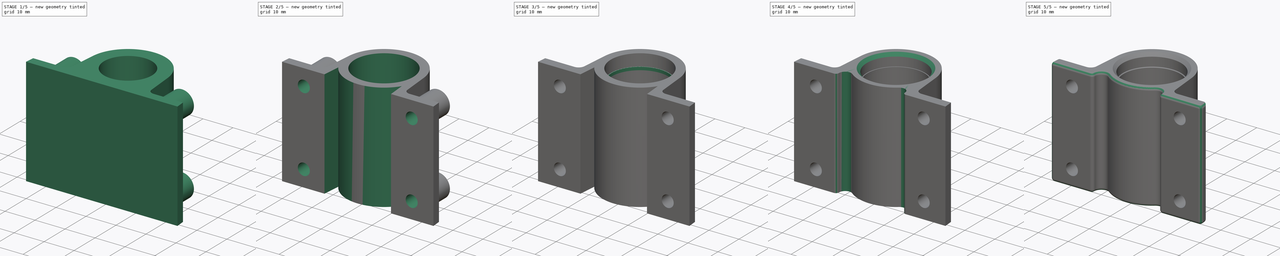
[diagram: build sequence overview — one tinted view per stage of 5, left to right]
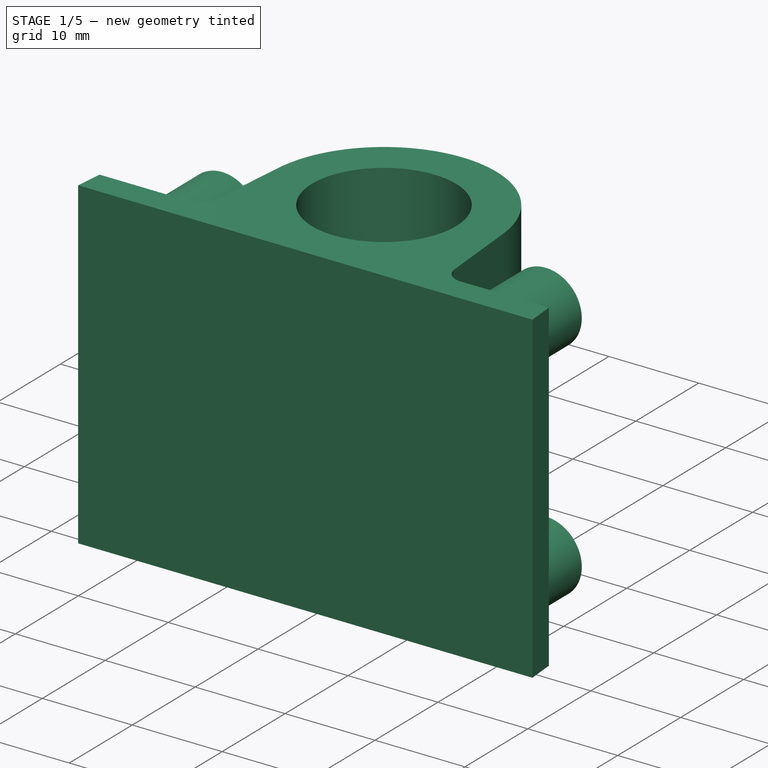
[diagram: stage 1 of 5 — iso view after this stage's code; geometry added in this stage tinted green]
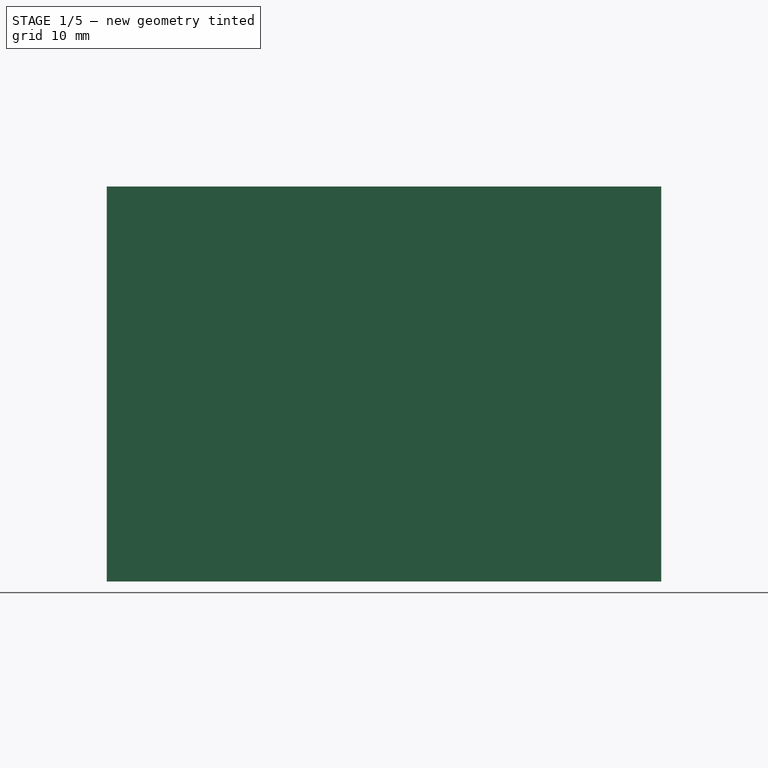
[diagram: stage 1 of 5 — front view after this stage's code; geometry added in this stage tinted green]
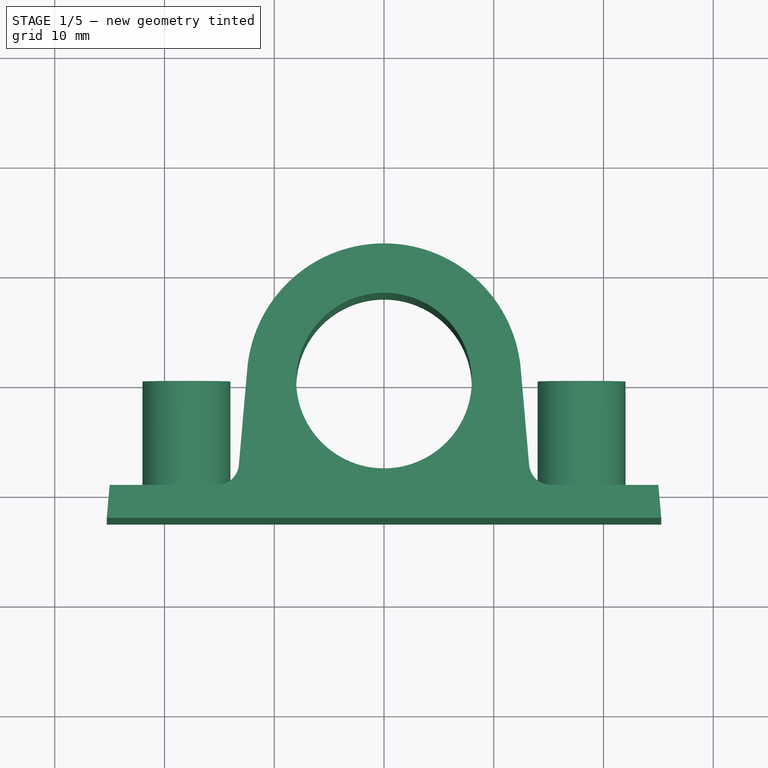
[diagram: stage 1 of 5 — top view after this stage's code; geometry added in this stage tinted green]
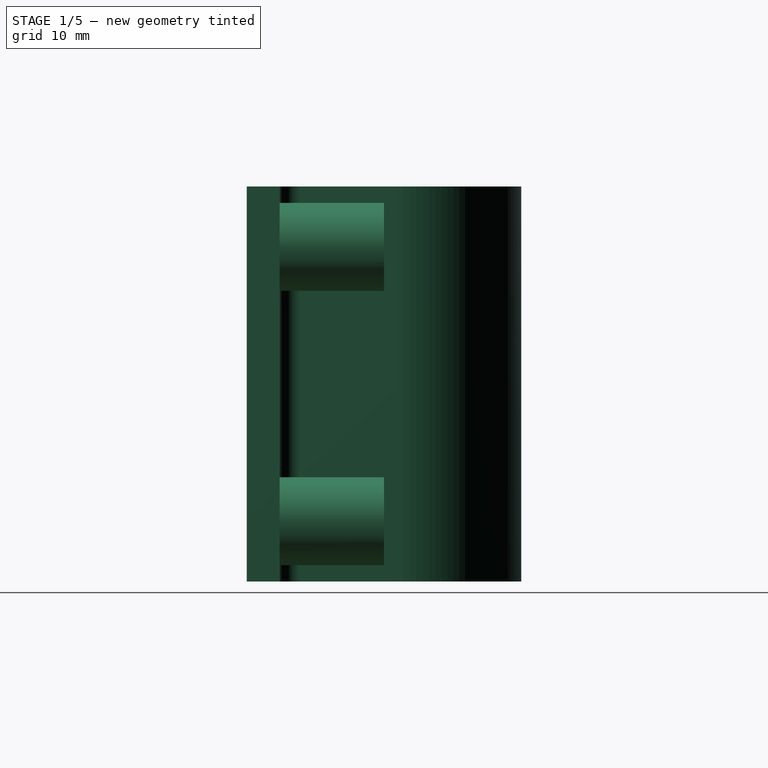
[diagram: stage 1 of 5 — right view after this stage's code; geometry added in this stage tinted green]
FCSTD DOCUMENT  (FreeCAD 0.16R5861 (Git))
Label: bearing_holder_printing_v1.0
License: All rights reserved
LicenseURL: http://en.wikipedia.org/wiki/All_rights_reserved
objects: Sketcher::SketchObject×8, PartDesign::Pocket×5, PartDesign::Fillet×4, PartDesign::Pad×3, PartDesign::Chamfer×2, Part::MultiFuse×1
note: 31 computed .brp shape members not serialized (recipe doc carries the construction recipe); baked Part::Feature solids carry a one-line shape summary decoded from their .brp

FEATURE [Sketcher::SketchObject] Sketch
  sketch-geometry (12):
    g0: Circle [constr] CenterX=0 CenterY=0 CenterZ=0 NormalX=0 NormalY=0 NormalZ=1 Radius=9.505
    g1: ArcOfCircle CenterX=0 CenterY=0 CenterZ=0 NormalX=0 NormalY=0 NormalZ=1 Radius=12.505 StartAngle=0.0872696 EndAngle=3.05432
    g2: LineSegment StartX=-25.2625 StartY=-12.505 StartZ=0 EndX=25.2625 EndY=-12.505 EndZ=0
    g3: LineSegment StartX=12.4574 StartY=1.08992 StartZ=0 EndX=13.2246 EndY=-7.67931 EndZ=0
    g4: LineSegment StartX=-12.4574 StartY=1.08992 StartZ=0 EndX=-13.2246 EndY=-7.67931 EndZ=0
    g5: LineSegment StartX=-25 StartY=-9.505 StartZ=0 EndX=-15.217 EndY=-9.505 EndZ=0
    g6: LineSegment StartX=25 StartY=-9.505 StartZ=0 EndX=25.2625 EndY=-12.505 EndZ=0
    g7: LineSegment StartX=-25 StartY=-9.505 StartZ=0 EndX=-25.2625 EndY=-12.505 EndZ=0
    g8: LineSegment StartX=15.217 StartY=-9.505 StartZ=0 EndX=25 EndY=-9.505 EndZ=0
    g9: Circle CenterX=0 CenterY=0 CenterZ=0 NormalX=0 NormalY=0 NormalZ=1 Radius=8
    g10: ArcOfCircle CenterX=15.217 CenterY=-7.505 CenterZ=0 NormalX=0 NormalY=0 NormalZ=1 Radius=2 StartAngle=3.22886 EndAngle=4.71239
    g11: ArcOfCircle CenterX=-15.217 CenterY=-7.505 CenterZ=0 NormalX=0 NormalY=0 NormalZ=1 Radius=2 StartAngle=4.71239 EndAngle=6.19592
  constraints (31):
    c: Coincident(g0,g-1)
    c: Radius(g0) = 9.505
    c: Coincident(g1,g-1)
    c: Radius(g1) = 12.505
    c: Horizontal(g2)
    c: Tangent(g3,g1)
    c: Tangent(g4,g1)
    c: Angle(g3,g2) = 1.48353
    c: Angle(g2,g4) = 1.48353
    c: Coincident(g1,g4)
    c: Horizontal(g5)
    c: Tangent(g5,g0)
    c: DistanceX(g-1,g8) = 25
    c: Coincident(g6,g8)
    c: Coincident(g7,g5)
    c: Tangent(g5,g8)
    c: Coincident(g3,g1)
    c: DistanceX(g6,g5) = -50
    c: Coincident(g7,g2)
    c: Angle(g8,g6) = 1.65806
    c: Angle(g7,g5) = 1.65806
    c: DistanceY(g5,g2) = -3
    c: Coincident(g6,g2)
    c: Coincident(g9,g-1)
    c: Radius(g9) = 8
    c: Tangent(g3,g10) = -1.5708
    c: Tangent(g8,g10) = -1.5708
    c: Tangent(g4,g11) = 1.5708
    c: Tangent(g5,g11) = -1.5708
    c: Radius(g10) = 2
    c: Equal(g10,g11)
FEATURE [Sketcher::SketchObject] Sketch005
  sketch-geometry (8):
    g0: LineSegment [constr] StartX=-18 StartY=12.5 StartZ=0 EndX=18 EndY=12.5 EndZ=0
    g1: LineSegment [constr] StartX=18 StartY=12.5 StartZ=0 EndX=18 EndY=-12.5 EndZ=0
    g2: LineSegment [constr] StartX=18 StartY=-12.5 StartZ=0 EndX=-18 EndY=-12.5 EndZ=0
    g3: LineSegment [constr] StartX=-18 StartY=-12.5 StartZ=0 EndX=-18 EndY=12.5 EndZ=0
    g4: Circle CenterX=-18 CenterY=12.5 CenterZ=0 NormalX=0 NormalY=0 NormalZ=1 Radius=4
    g5: Circle CenterX=18 CenterY=12.5 CenterZ=0 NormalX=0 NormalY=0 NormalZ=1 Radius=4
    g6: Circle CenterX=18 CenterY=-12.5 CenterZ=0 NormalX=0 NormalY=0 NormalZ=1 Radius=4
    g7: Circle CenterX=-18 CenterY=-12.5 CenterZ=0 NormalX=0 NormalY=0 NormalZ=1 Radius=4
  constraints (20):
    c: Coincident(g0,g1)
    c: Coincident(g1,g2)
    c: Coincident(g2,g3)
    c: Coincident(g3,g0)
    c: Horizontal(g0)
    c: Horizontal(g2)
    c: Vertical(g1)
    c: Vertical(g3)
    c: DistanceY(g-1,g0) = 12.5
    c: DistanceY(g1) = -25
    c: DistanceX(g2) = -36
    c: DistanceX(g-1,g1) = 18
    c: Radius(g4) = 4
    c: Equal(g7,g4)
    c: Equal(g4,g5)
    c: Equal(g5,g6)
    c: Coincident(g0,g4)
    c: Coincident(g0,g5)
    c: Coincident(g1,g6)
    c: Coincident(g2,g7)
FEATURE [PartDesign::Pad] Pad
  Length = 10
  Length2 = 100
  Sketch = -> Sketch005
  Type = 0
FEATURE [PartDesign::Pad] Pad001
  Length = 36
  Length2 = 100
  Midplane = true
  Sketch = -> Sketch
  Type = 0
FEATURE [Part::MultiFuse] Fusion
  Shapes = -> [Pad,Pad001]
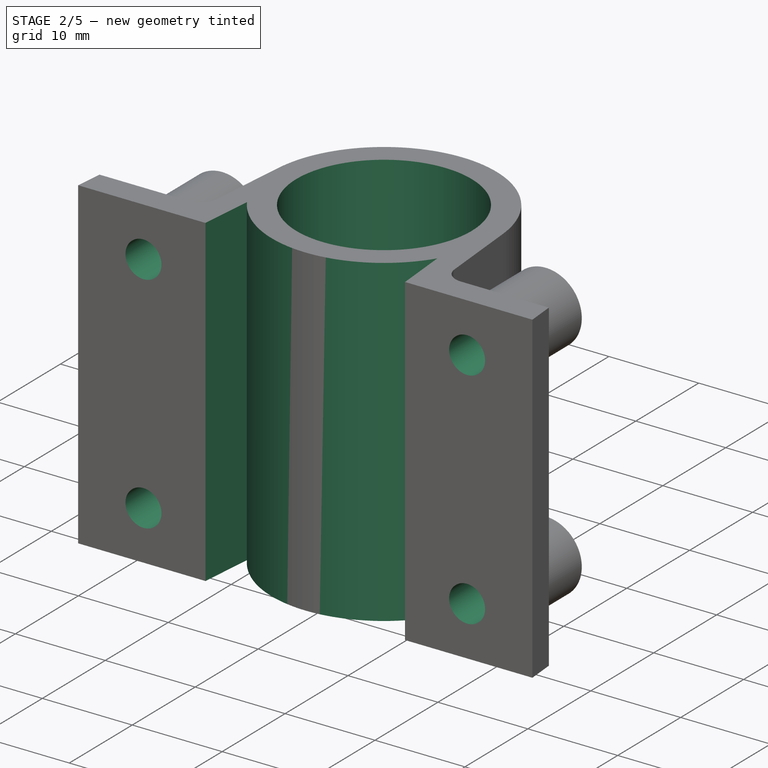
[diagram: stage 2 of 5 — iso view after this stage's code; geometry added in this stage tinted green]
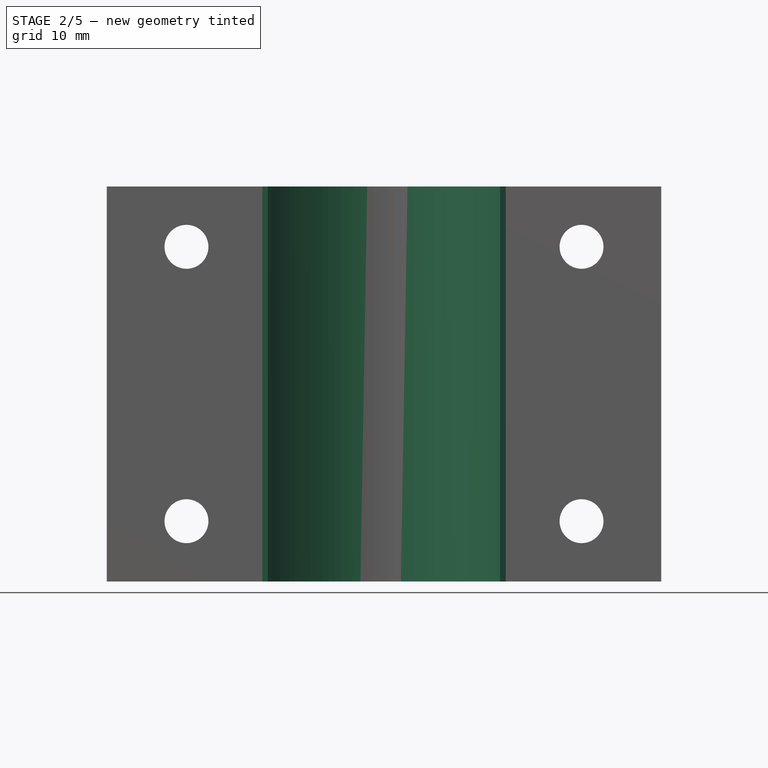
[diagram: stage 2 of 5 — front view after this stage's code; geometry added in this stage tinted green]
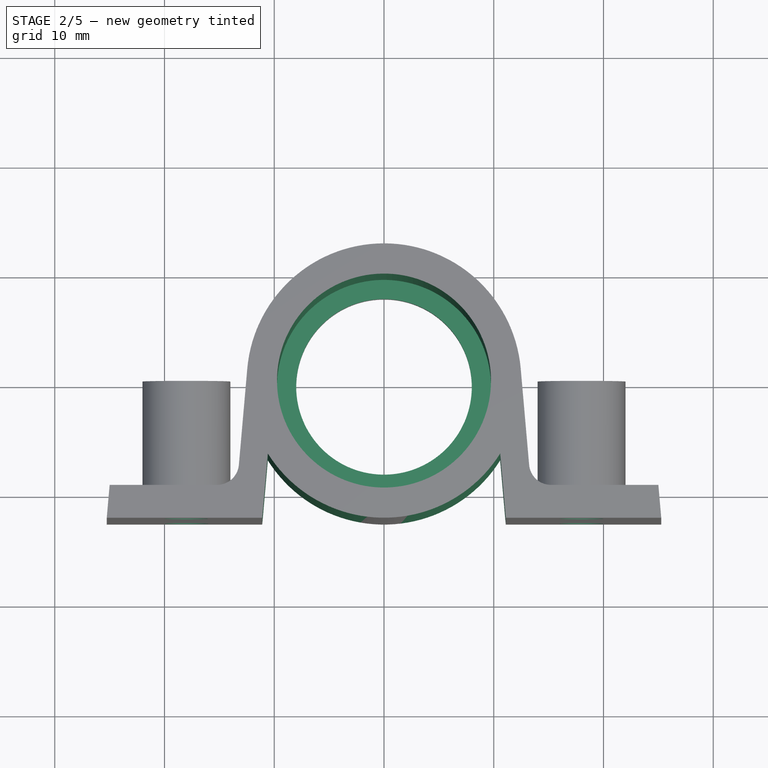
[diagram: stage 2 of 5 — top view after this stage's code; geometry added in this stage tinted green]
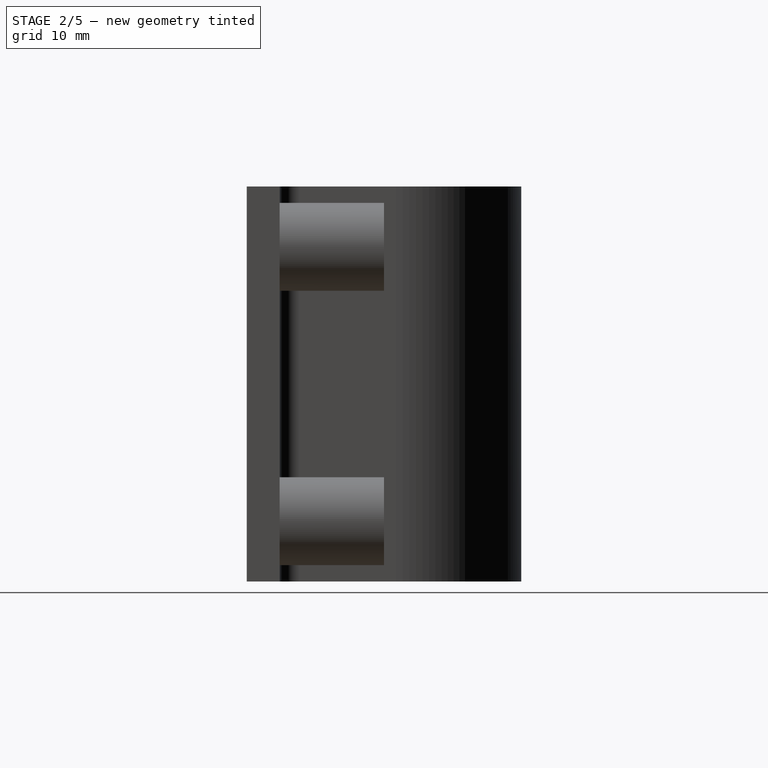
[diagram: stage 2 of 5 — right view after this stage's code; geometry added in this stage tinted green]
FEATURE [Sketcher::SketchObject] Sketch001
  Placement = pos=(0,0,18) rot=(0,0,1;0rad)
  Support = -> Fusion [Face5]
  sketch-geometry (1):
    g0: Circle CenterX=0 CenterY=0 CenterZ=0 NormalX=0 NormalY=0 NormalZ=1 Radius=9.75
  constraints (2):
    c: Coincident(g0,g-1)
    c: Radius(g0) = 9.75
FEATURE [PartDesign::Pocket] Pocket
  Length = 33
  Sketch = -> Sketch001
  Type = 0
FEATURE [Sketcher::SketchObject] Sketch006
  ExternalGeometry = -> [Pocket]
  Placement = pos=(0,0,0) rot=(0,0.707107,0.707107;3.14159rad)
  Support = -> Pocket [Face18]
  sketch-geometry (4):
    g0: Circle CenterX=-18 CenterY=12.5 CenterZ=0 NormalX=0 NormalY=0 NormalZ=1 Radius=2
    g1: Circle CenterX=18 CenterY=12.5 CenterZ=0 NormalX=0 NormalY=0 NormalZ=1 Radius=2
    g2: Circle CenterX=18 CenterY=-12.5 CenterZ=0 NormalX=0 NormalY=0 NormalZ=1 Radius=2
    g3: Circle CenterX=-18 CenterY=-12.5 CenterZ=0 NormalX=0 NormalY=0 NormalZ=1 Radius=2
  constraints (8):
    c: Radius(g1) = 2
    c: Equal(g1,g2)
    c: Equal(g2,g3)
    c: Equal(g3,g0)
    c: Coincident(g1,g-4)
    c: Coincident(g2,g-5)
    c: Coincident(g3,g-6)
    c: Coincident(g0,g-3)
FEATURE [PartDesign::Pocket] Pocket001
  Length = 5
  Sketch = -> Sketch006
  Type = 1
FEATURE [Sketcher::SketchObject] Sketch003
  Placement = pos=(0,0,18) rot=(0,0,1;0rad)
  Support = -> Pocket001 [Face5]
  sketch-geometry (4):
    g0: ArcOfCircle CenterX=0 CenterY=0 CenterZ=0 NormalX=0 NormalY=0 NormalZ=1 Radius=12.5 StartAngle=3.70248 EndAngle=5.7223
    g1: LineSegment StartX=-10.5848 StartY=-6.64921 StartZ=0 EndX=-11.3154 EndY=-15 EndZ=0
    g2: LineSegment StartX=10.5848 StartY=-6.64921 StartZ=0 EndX=11.3154 EndY=-15 EndZ=0
    g3: LineSegment StartX=-11.3154 StartY=-15 StartZ=0 EndX=11.3154 EndY=-15 EndZ=0
  constraints (12):
    c: Coincident(g0,g1)
    c: Coincident(g0,g2)
    c: Coincident(g1,g3)
    c: Coincident(g2,g3)
    c: Radius(g0) = 12.5
    c: Coincident(g0,g-1)
    c: DistanceX(g-1,g2) = 11.3154
    c: DistanceX(g-1,g1) = -11.3154
    c: Angle(g2,g3) = 1.48353
    c: Angle(g3,g1) = 1.48353
    c: DistanceY(g-1,g2) = -15
    c: Horizontal(g3)
FEATURE [PartDesign::Pocket] Pocket002
  Length = 5
  Sketch = -> Sketch003
  Type = 1
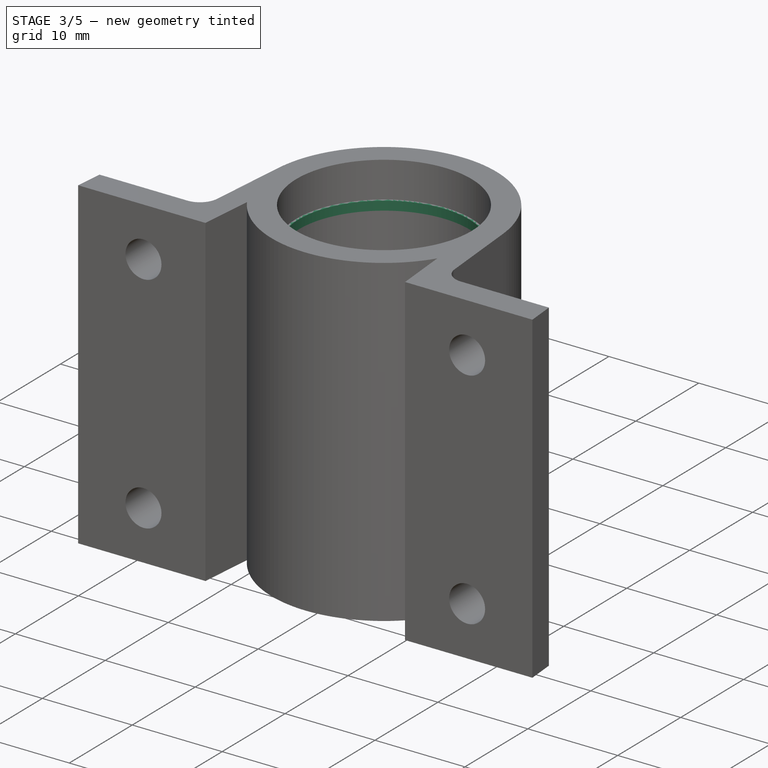
[diagram: stage 3 of 5 — iso view after this stage's code; geometry added in this stage tinted green]
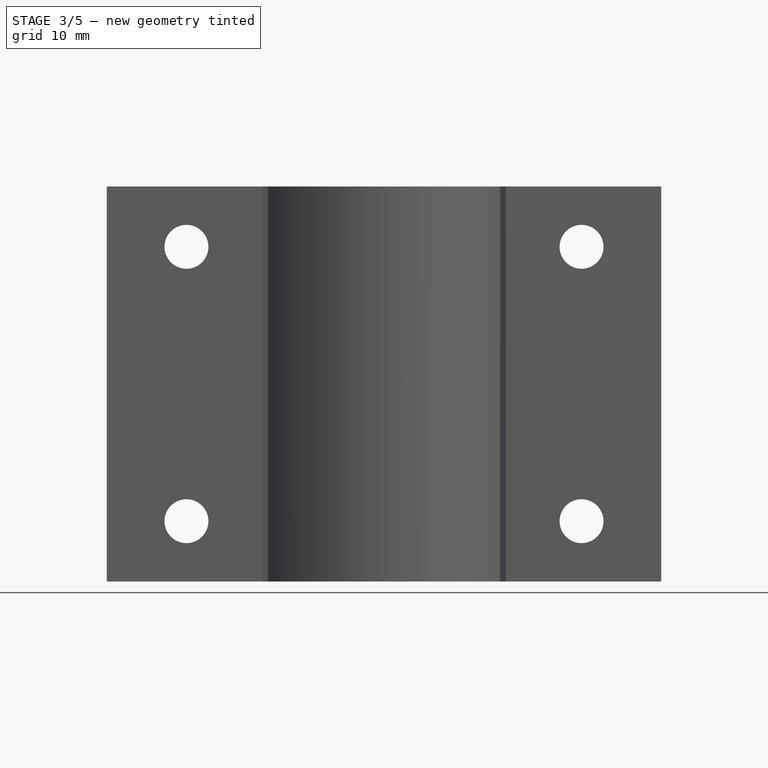
[diagram: stage 3 of 5 — front view after this stage's code; geometry added in this stage tinted green]
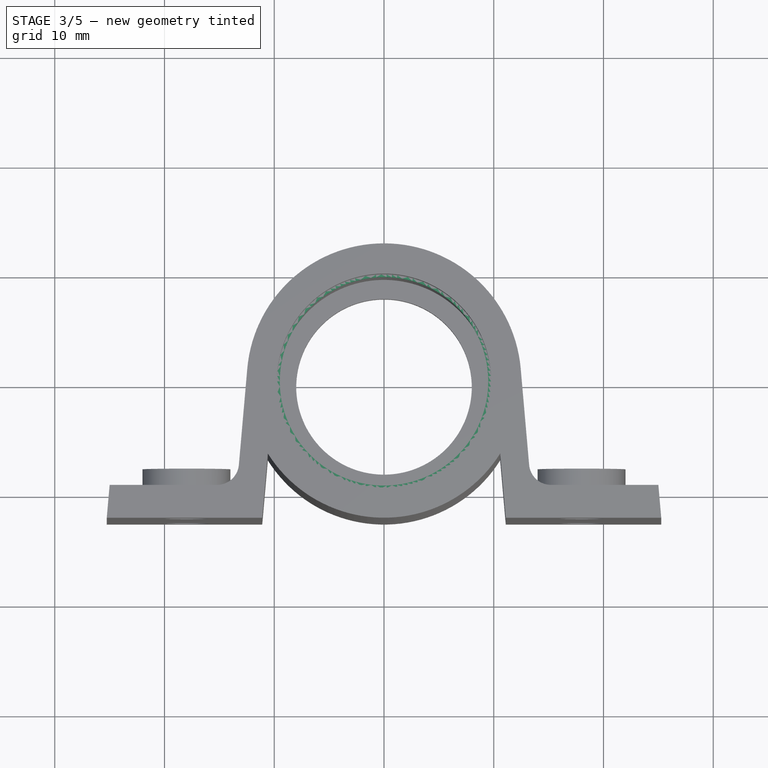
[diagram: stage 3 of 5 — top view after this stage's code; geometry added in this stage tinted green]
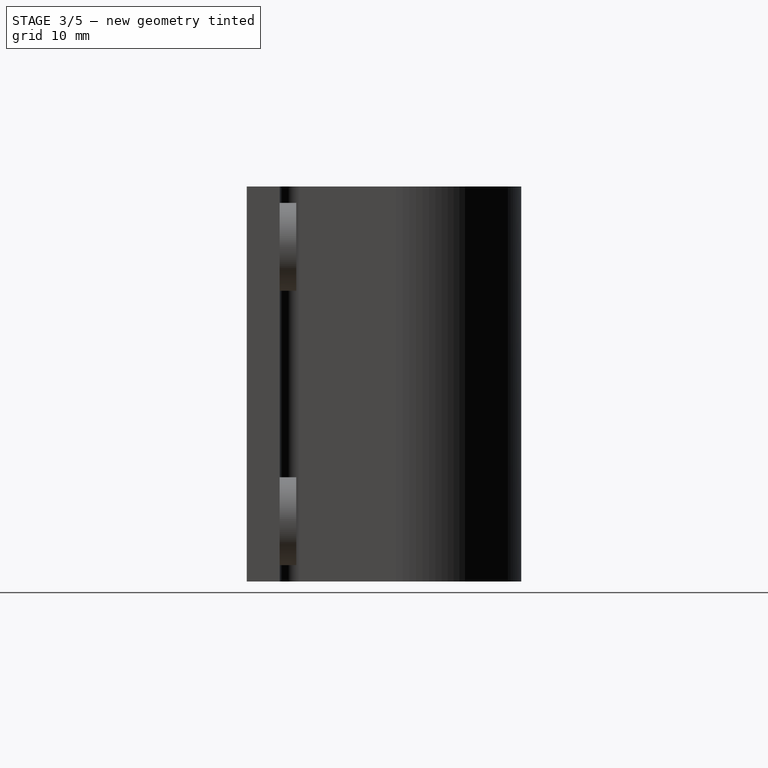
[diagram: stage 3 of 5 — right view after this stage's code; geometry added in this stage tinted green]
FEATURE [Sketcher::SketchObject] Sketch007
  ExternalGeometry = -> [Pocket002]
  Placement = pos=(0,0,0) rot=(0,0.707107,0.707107;3.14159rad)
  Support = -> Pocket002 [Face30]
  sketch-geometry (4):
    g0: Circle CenterX=-18 CenterY=12.5 CenterZ=0 NormalX=0 NormalY=0 NormalZ=1 Radius=4.5
    g1: Circle CenterX=-18 CenterY=-12.5 CenterZ=0 NormalX=0 NormalY=0 NormalZ=1 Radius=4.5
    g2: Circle CenterX=18 CenterY=-12.5 CenterZ=0 NormalX=0 NormalY=0 NormalZ=1 Radius=4.5
    g3: Circle CenterX=18 CenterY=12.5 CenterZ=0 NormalX=0 NormalY=0 NormalZ=1 Radius=4.5
  constraints (8):
    c: Coincident(g0,g-3)
    c: Coincident(g3,g-6)
    c: Coincident(g2,g-5)
    c: Coincident(g1,g-4)
    c: Radius(g0) = 4.5
    c: Equal(g0,g3)
    c: Equal(g3,g2)
    c: Equal(g2,g1)
FEATURE [PartDesign::Pocket] Pocket003
  Length = 8
  Sketch = -> Sketch007
  Type = 0
FEATURE [Sketcher::SketchObject] Sketch008
  Placement = pos=(0,0,18) rot=(0,0,1;0rad)
  Support = -> Pocket003 [Face5]
  sketch-geometry (2):
    g0: Circle CenterX=0 CenterY=0 CenterZ=0 NormalX=0 NormalY=0 NormalZ=1 Radius=9.5
    g1: Circle CenterX=0 CenterY=0 CenterZ=0 NormalX=0 NormalY=0 NormalZ=1 Radius=11
  constraints (4):
    c: Radius(g0) = 9.5
    c: Radius(g1) = 11
    c: Coincident(g0,g1)
    c: Coincident(g0,g-1)
FEATURE [PartDesign::Pad] Pad002
  Length = 5
  Length2 = 100
  Reversed = true
  Sketch = -> Sketch008
  Type = 0
FEATURE [Sketcher::SketchObject] Sketch009
  Placement = pos=(0,0,18) rot=(0,0,1;0rad)
  Support = -> Pad002 [Face20]
  sketch-geometry (1):
    g0: Circle CenterX=0 CenterY=0 CenterZ=0 NormalX=0 NormalY=0 NormalZ=1 Radius=9.75
  constraints (2):
    c: Radius(g0) = 9.75
    c: Coincident(g0,g-1)
FEATURE [PartDesign::Pocket] Pocket004
  Length = 4
  Sketch = -> Sketch009
  Type = 0
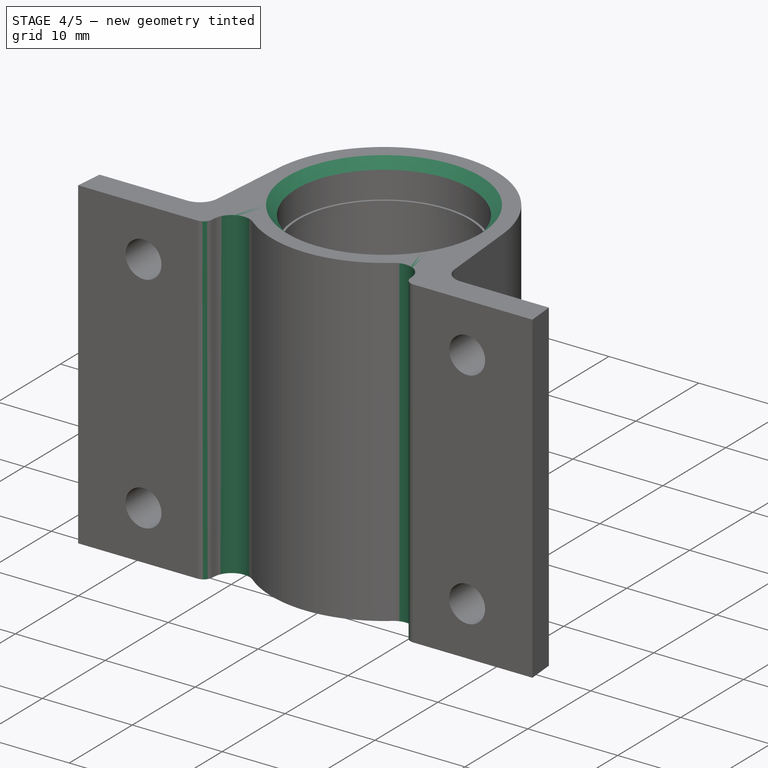
[diagram: stage 4 of 5 — iso view after this stage's code; geometry added in this stage tinted green]
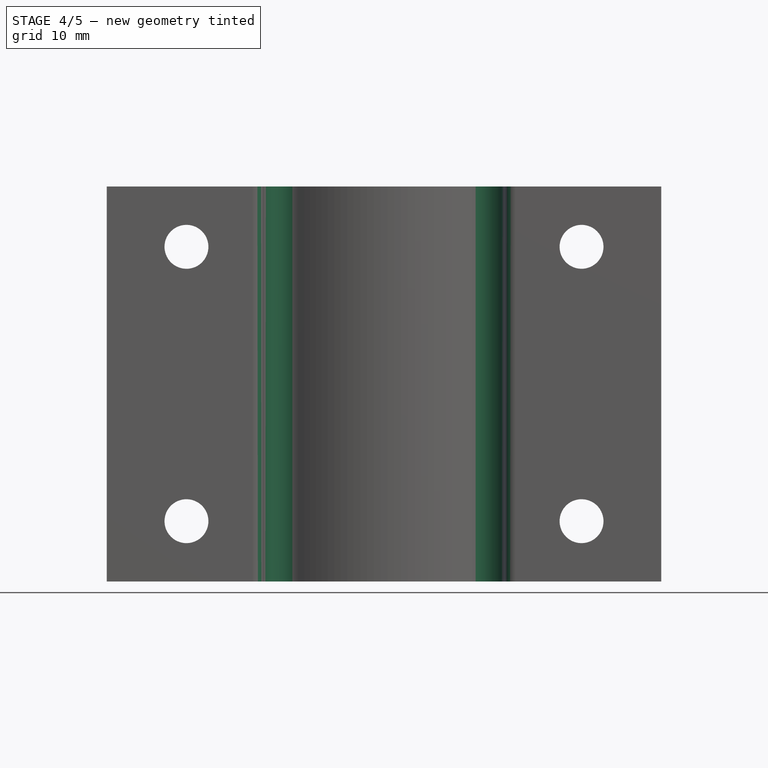
[diagram: stage 4 of 5 — front view after this stage's code; geometry added in this stage tinted green]
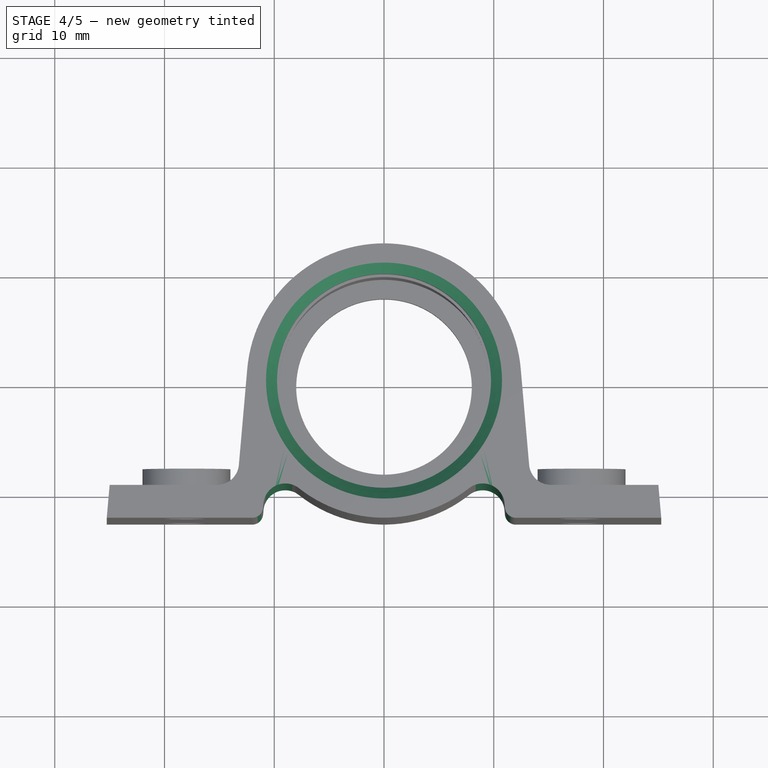
[diagram: stage 4 of 5 — top view after this stage's code; geometry added in this stage tinted green]
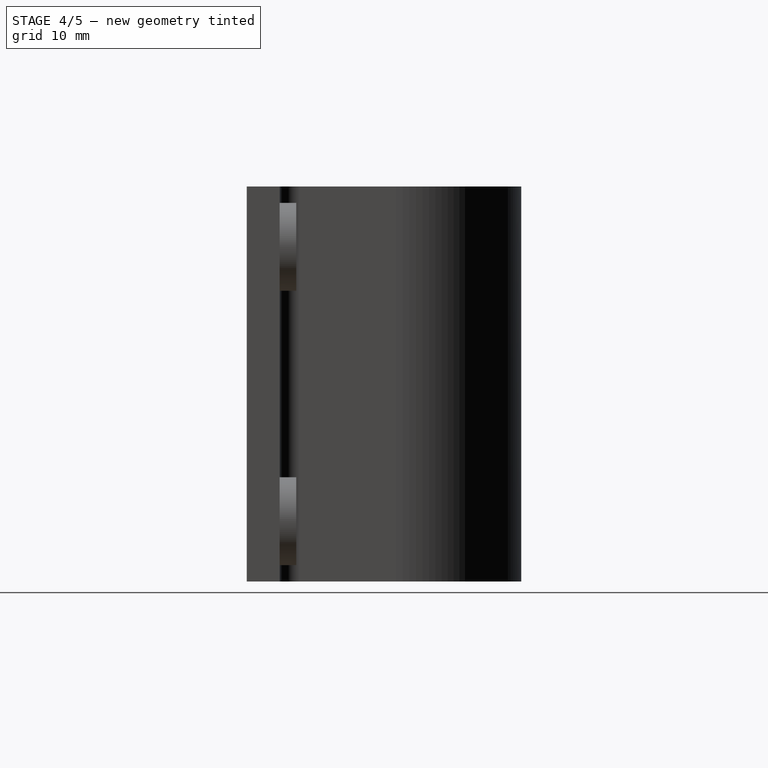
[diagram: stage 4 of 5 — right view after this stage's code; geometry added in this stage tinted green]
FEATURE [PartDesign::Chamfer] Chamfer
  Base = -> Pocket004 [Edge73]
  Size = 1
FEATURE [PartDesign::Fillet] Fillet
  Base = -> Chamfer [Edge69,Edge63]
  Radius = 2
FEATURE [PartDesign::Fillet] Fillet001
  Base = -> Fillet [Edge41,Edge19]
  Radius = 1
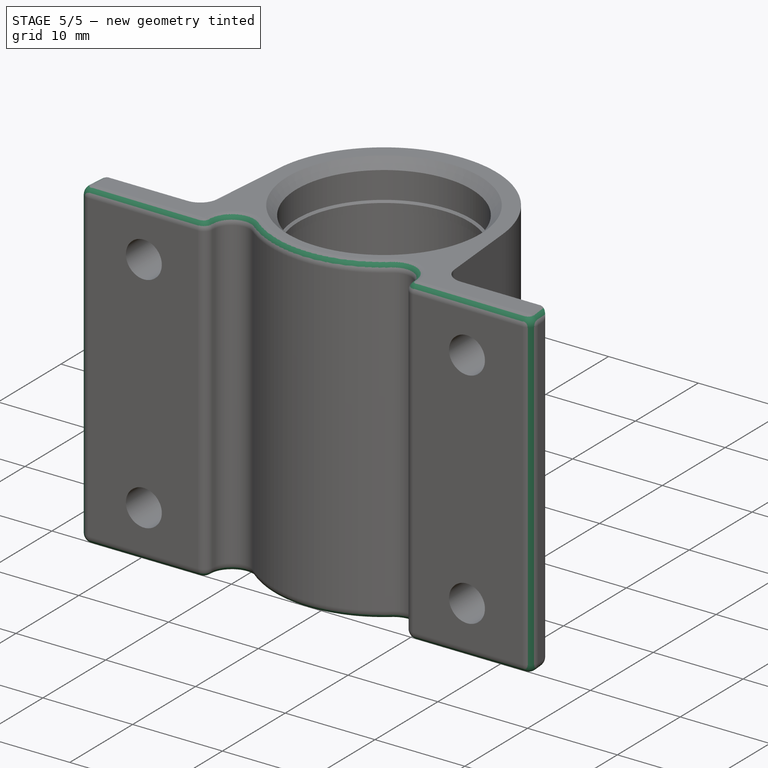
[diagram: stage 5 of 5 — iso view after this stage's code; geometry added in this stage tinted green]
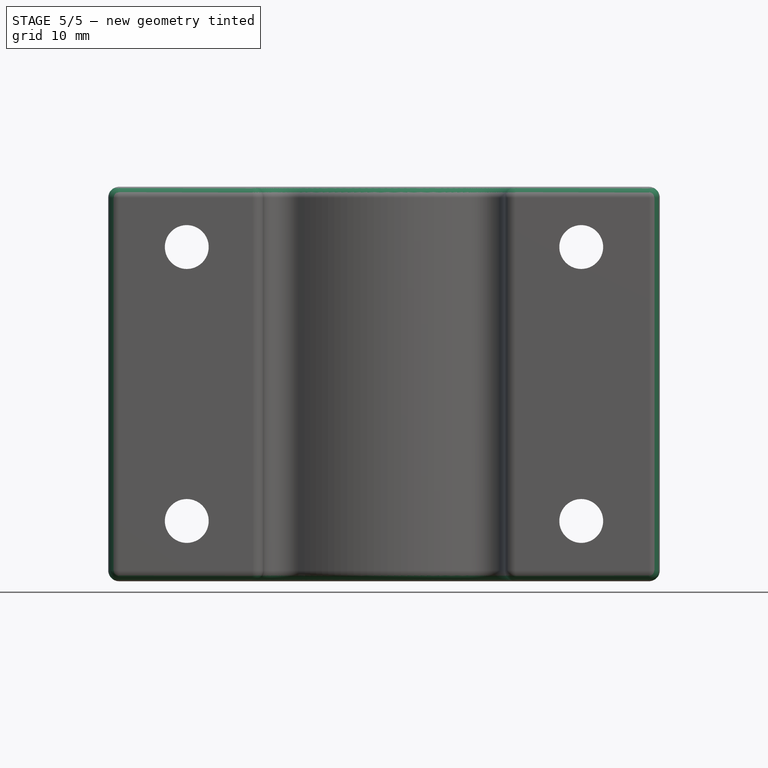
[diagram: stage 5 of 5 — front view after this stage's code; geometry added in this stage tinted green]
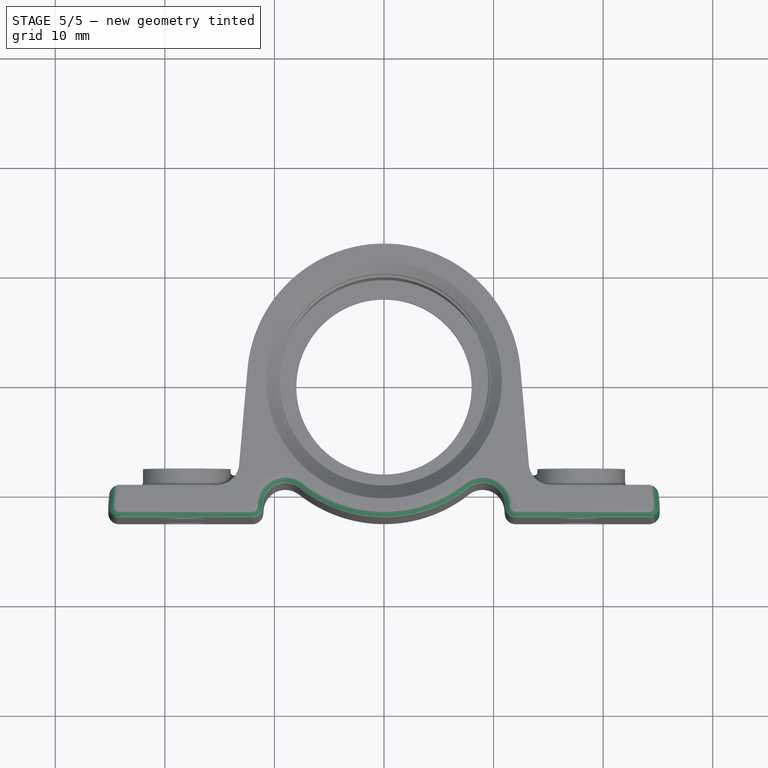
[diagram: stage 5 of 5 — top view after this stage's code; geometry added in this stage tinted green]
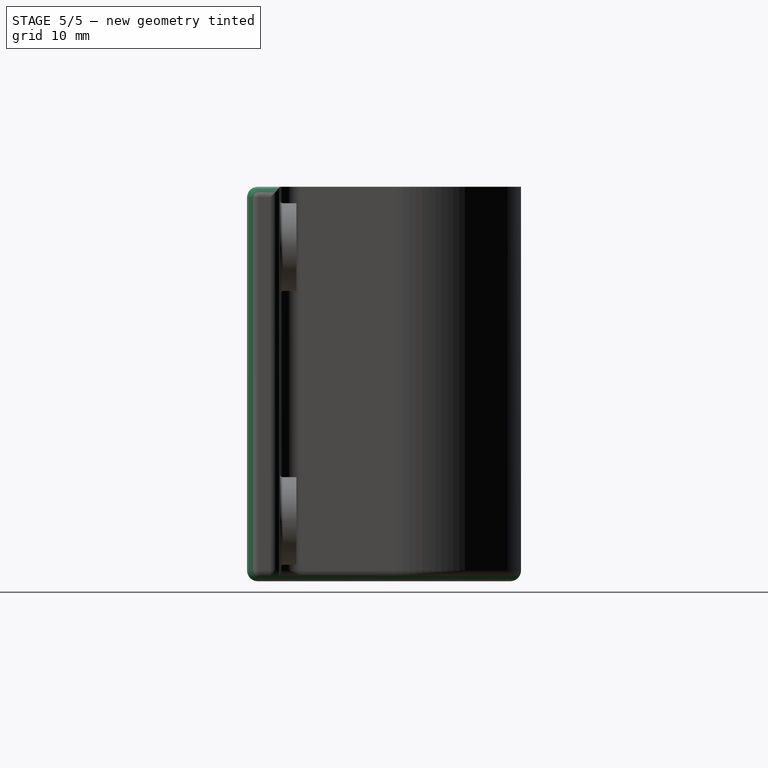
[diagram: stage 5 of 5 — right view after this stage's code; geometry added in this stage tinted green]
FEATURE [PartDesign::Fillet] Fillet002
  Base = -> Fillet001 [Edge3,Edge22,Edge23,Edge26,Edge27,Edge32,Edge34,Edge36,Edge37,Edge46,Edge47,Edge53,Edge56,Edge57,Edge62,Edge64,Edge66,Edge67,Edge73,Edge79,Edge33,Edge28,Edge6,Edge63,Edge58,Edge15]
  Radius = 1
FEATURE [PartDesign::Chamfer] Chamfer001
  Base = -> Fillet002 [Edge185]
  Size = 0.2
FEATURE [PartDesign::Fillet] Fillet003
  Base = -> Chamfer001 [Edge81,Edge78,Edge40,Edge37]
  Radius = 0.3
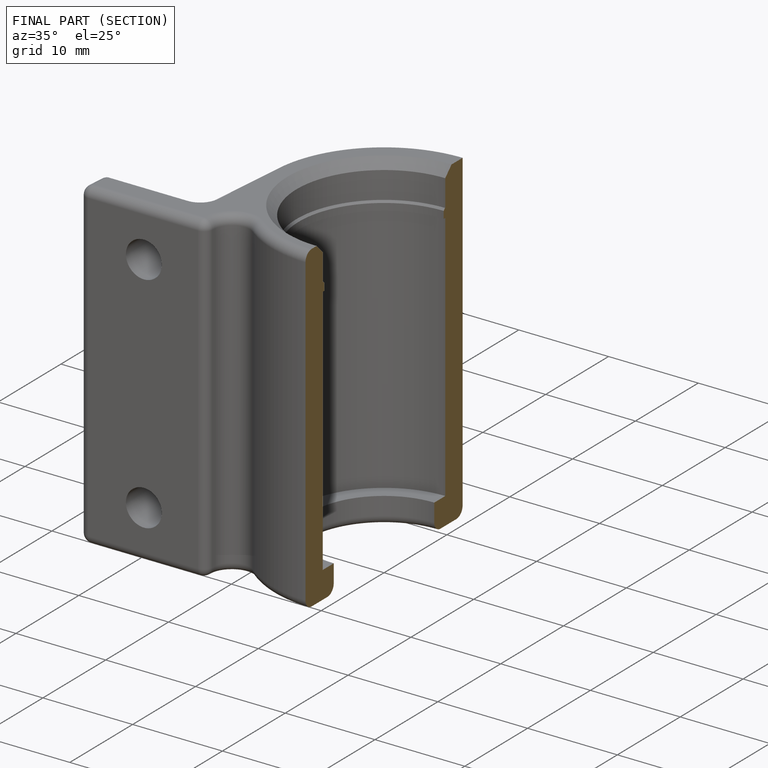
[diagram: finished part — half-section view (interior)]
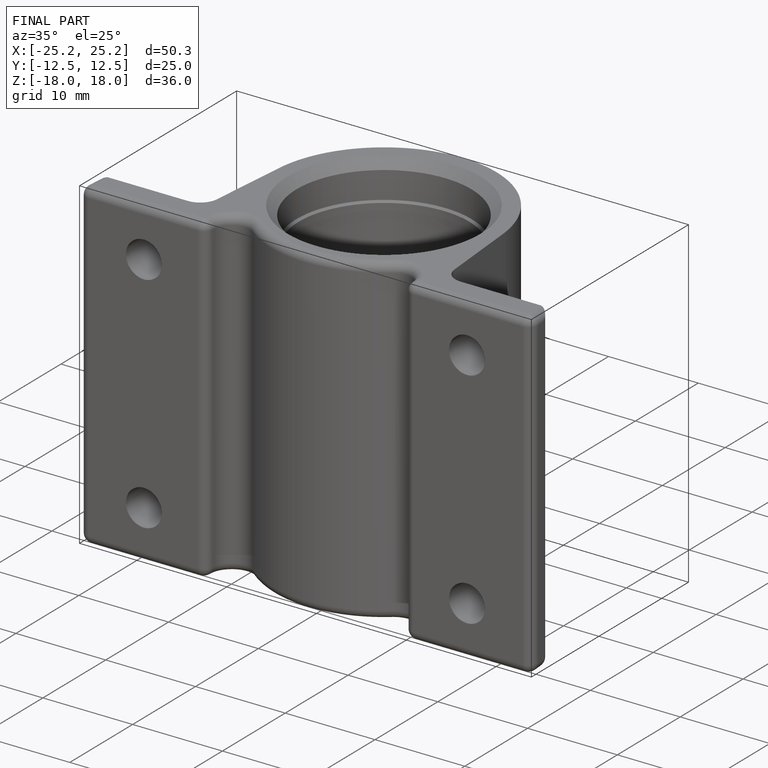
[diagram: finished part — iso view with bounding-box wireframe]
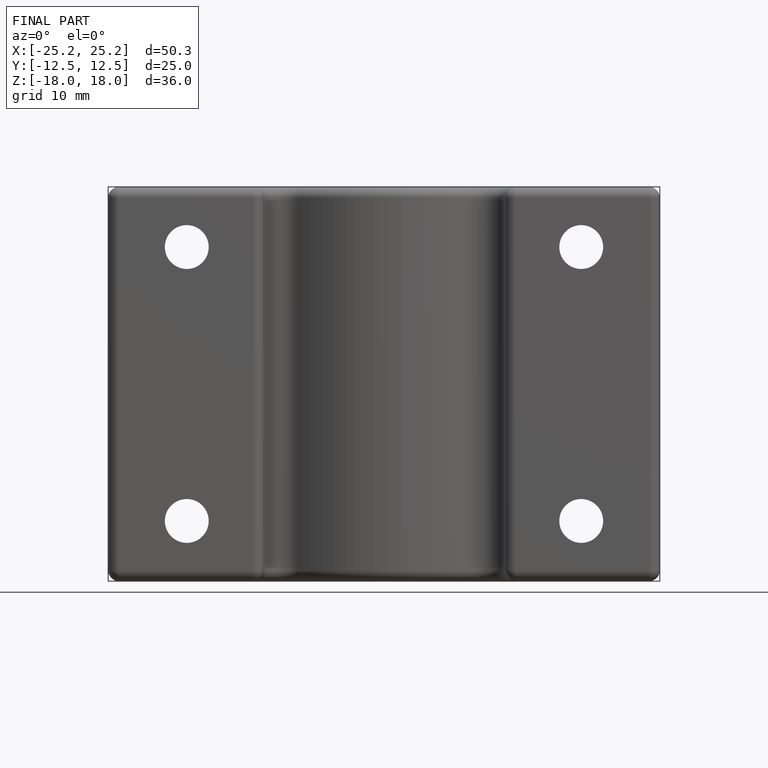
[diagram: finished part — front view with bounding-box wireframe]
